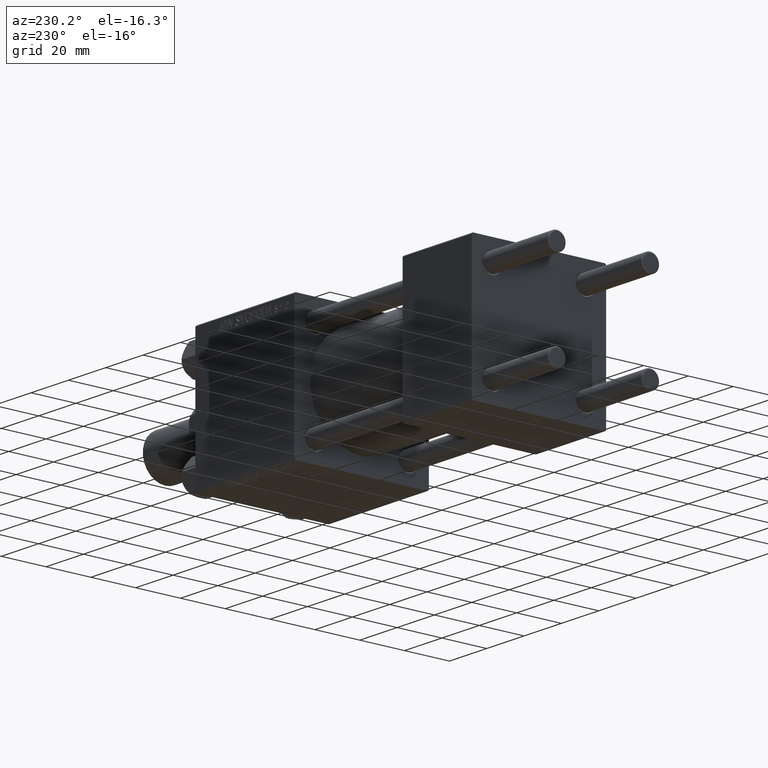
[diagram: clean part render]
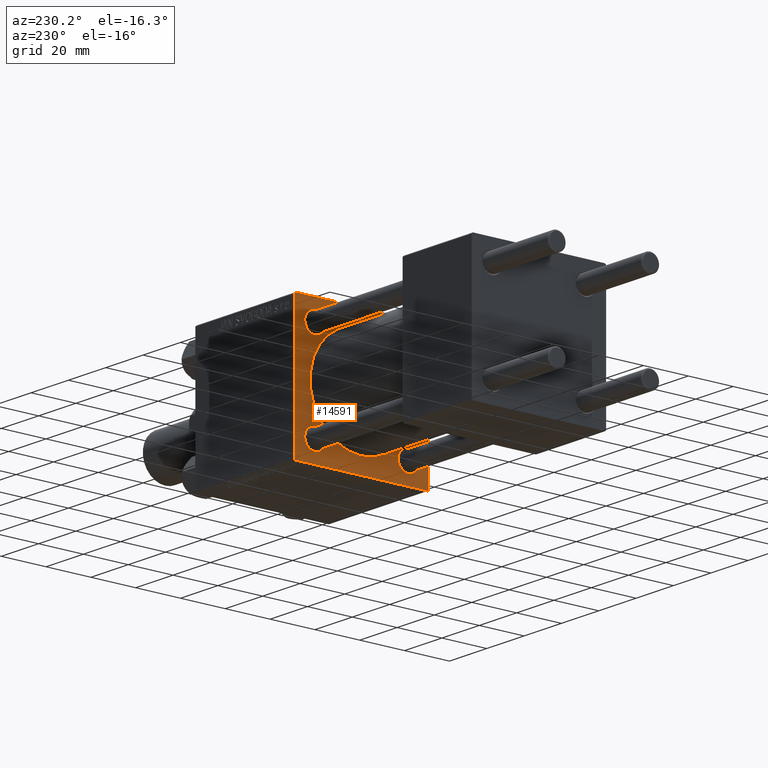
[diagram: same view with one face highlighted and labeled with its STEP entity id]
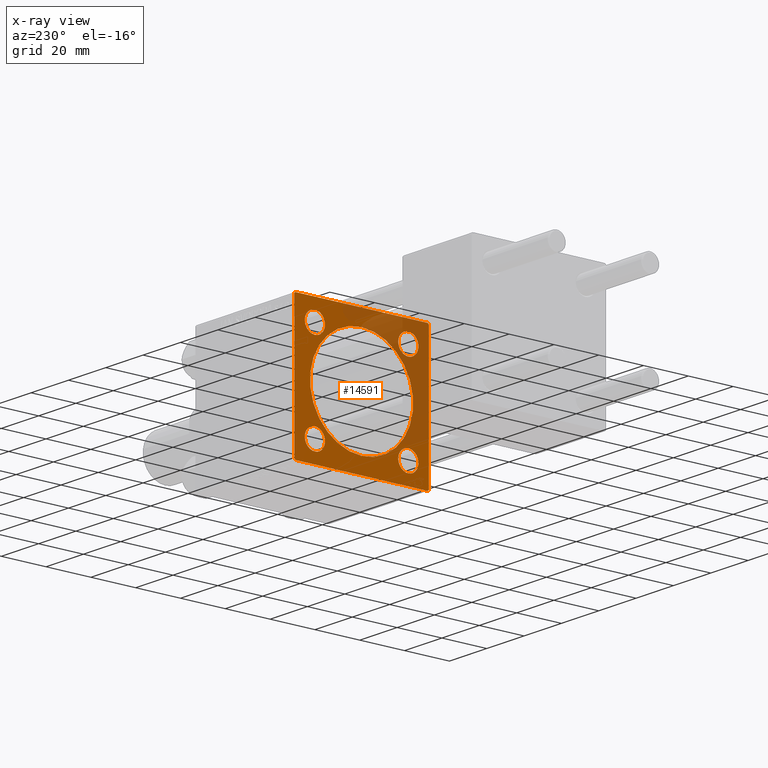
[diagram: x-ray of the same camera — body ghosted, the highlighted face saturated]
A machine part, auxiliary view. The second image highlights one B-rep face of the part: STEP entity #14591.
The next image is the same camera in x-ray: the body ghosted, the highlighted face saturated — about 34% of this face is hidden behind the body in this view.
In plain terms, the highlighted planar face has unit normal (-1, 0, 0).
Its self-contained STEP definition (entity closure, byte-faithful):
#133 = CARTESIAN_POINT ( 'NONE',  ( 95.00000000000000000, -20.84999999999999076, 20.85000000000000497 ) ) ;
#414 = DIRECTION ( 'NONE',  ( 0.000000000000000000, -1.000000000000000000, -1.156482317317871478E-16 ) ) ;
#1479 = VERTEX_POINT ( 'NONE', #14262 ) ;
#1724 = CIRCLE ( 'NONE', #30298, 4.500000000000003553 ) ;
#1769 = ORIENTED_EDGE ( 'NONE', *, *, #37141, .T. ) ;
#1861 = VERTEX_POINT ( 'NONE', #22562 ) ;
#1872 = CARTESIAN_POINT ( 'NONE',  ( 95.00000000000000000, -20.84999999999999076, 16.35000000000000142 ) ) ;
#2213 = ORIENTED_EDGE ( 'NONE', *, *, #44463, .T. ) ;
#3499 = DIRECTION ( 'NONE',  ( 0.000000000000000000, 0.000000000000000000, 1.000000000000000000 ) ) ;
#3792 = EDGE_LOOP ( 'NONE', ( #22305, #12843 ) ) ;
#4102 = ORIENTED_EDGE ( 'NONE', *, *, #6906, .T. ) ;
#4225 = ORIENTED_EDGE ( 'NONE', *, *, #27579, .T. ) ;
#4355 = VECTOR ( 'NONE', #34057, 1000.000000000000114 ) ;
#4947 = EDGE_CURVE ( 'NONE', #43282, #17350, #25901, .T. ) ;
#5177 = VERTEX_POINT ( 'NONE', #30387 ) ;
#5377 = CIRCLE ( 'NONE', #15989, 4.500000000000003553 ) ;
#5545 = VERTEX_POINT ( 'NONE', #44357 ) ;
#6450 = DIRECTION ( 'NONE',  ( 1.000000000000000000, 0.000000000000000000, 0.000000000000000000 ) ) ;
#6791 = DIRECTION ( 'NONE',  ( -1.000000000000000000, 0.000000000000000000, -0.000000000000000000 ) ) ;
#6906 = EDGE_CURVE ( 'NONE', #17350, #43282, #21770, .T. ) ;
#7037 = FACE_BOUND ( 'NONE', #34187, .T. ) ;
#7561 = EDGE_CURVE ( 'NONE', #38021, #39861, #34868, .T. ) ;
#7583 = VECTOR ( 'NONE', #38017, 1000.000000000000114 ) ;
#7894 = VECTOR ( 'NONE', #414, 1000.000000000000000 ) ;
#8184 = DIRECTION ( 'NONE',  ( 1.000000000000000000, 0.000000000000000000, 0.000000000000000000 ) ) ;
#8212 = AXIS2_PLACEMENT_3D ( 'NONE', #11758, #12764, #28379 ) ;
#8523 = DIRECTION ( 'NONE',  ( 0.000000000000000000, 0.000000000000000000, 1.000000000000000000 ) ) ;
#9545 = AXIS2_PLACEMENT_3D ( 'NONE', #133, #28251, #43103 ) ;
#9742 = CARTESIAN_POINT ( 'NONE',  ( 95.00000000000000000, -30.00000000000000000, -29.49999999999998579 ) ) ;
#10066 = CARTESIAN_POINT ( 'NONE',  ( 95.00000000000000000, 30.00000000000000000, 29.50000000000000000 ) ) ;
#10101 = AXIS2_PLACEMENT_3D ( 'NONE', #28950, #13858, #36884 ) ;
#10377 = FACE_BOUND ( 'NONE', #49153, .T. ) ;
#10940 = ORIENTED_EDGE ( 'NONE', *, *, #4947, .T. ) ;
#10997 = VERTEX_POINT ( 'NONE', #27969 ) ;
#11213 = EDGE_CURVE ( 'NONE', #35250, #18094, #30763, .T. ) ;
#11278 = DIRECTION ( 'NONE',  ( 0.000000000000000000, 0.000000000000000000, -1.000000000000000000 ) ) ;
#11323 = DIRECTION ( 'NONE',  ( -0.000000000000000000, -0.7071067811865474617, -0.7071067811865474617 ) ) ;
#11462 = CARTESIAN_POINT ( 'NONE',  ( 95.00000000000000000, 30.00000000000000000, -29.99999999999999289 ) ) ;
#11758 = CARTESIAN_POINT ( 'NONE',  ( 95.00000000000000000, 20.84999999999999787, 20.85000000000000142 ) ) ;
#12314 = CIRCLE ( 'NONE', #18827, 4.500000000000003553 ) ;
#12561 = EDGE_CURVE ( 'NONE', #5545, #47023, #47259, .T. ) ;
#12669 = CARTESIAN_POINT ( 'NONE',  ( 95.00000000000000000, 30.00000000000000000, 30.00000000000000000 ) ) ;
#12764 = DIRECTION ( 'NONE',  ( 1.000000000000000000, -0.000000000000000000, 0.000000000000000000 ) ) ;
#12793 = EDGE_CURVE ( 'NONE', #18094, #27571, #34745, .T. ) ;
#12843 = ORIENTED_EDGE ( 'NONE', *, *, #7561, .T. ) ;
#12866 = DIRECTION ( 'NONE',  ( 1.000000000000000000, -0.000000000000000000, 0.000000000000000000 ) ) ;
#12897 = ORIENTED_EDGE ( 'NONE', *, *, #44071, .F. ) ;
#13118 = CARTESIAN_POINT ( 'NONE',  ( 95.00000000000000000, 20.84999999999999787, 20.85000000000000142 ) ) ;
#13380 = DIRECTION ( 'NONE',  ( 0.000000000000000000, 0.000000000000000000, -1.000000000000000000 ) ) ;
#13765 = CARTESIAN_POINT ( 'NONE',  ( 95.00000000000000000, 30.00000000000000000, -29.49999999999997868 ) ) ;
#13811 = EDGE_CURVE ( 'NONE', #20222, #1861, #49742, .T. ) ;
#13858 = DIRECTION ( 'NONE',  ( 1.000000000000000000, -0.000000000000000000, 0.000000000000000000 ) ) ;
#14084 = ORIENTED_EDGE ( 'NONE', *, *, #31922, .T. ) ;
#14197 = CARTESIAN_POINT ( 'NONE',  ( 95.00000000000000000, -29.74999999999999645, 29.74999999999999645 ) ) ;
#14209 = FACE_BOUND ( 'NONE', #17165, .T. ) ;
#14262 = CARTESIAN_POINT ( 'NONE',  ( 95.00000000000000000, -30.00000000000000000, 29.49999999999999289 ) ) ;
#14421 = VECTOR ( 'NONE', #13380, 1000.000000000000000 ) ;
#14591 = ADVANCED_FACE ( 'NONE', ( #41333, #14209, #7037, #10377, #25982, #42075 ), #41590, .T. ) ;
#15102 = CARTESIAN_POINT ( 'NONE',  ( 95.00000000000000000, -30.00000000000000000, 29.99999999999999289 ) ) ;
#15549 = DIRECTION ( 'NONE',  ( 0.000000000000000000, -1.000000000000000000, -1.156482317317871478E-16 ) ) ;
#15584 = CARTESIAN_POINT ( 'NONE',  ( 95.00000000000000000, -20.84999999999999076, 20.85000000000000497 ) ) ;
#15989 = AXIS2_PLACEMENT_3D ( 'NONE', #22276, #37133, #37638 ) ;
#16945 = ORIENTED_EDGE ( 'NONE', *, *, #47531, .F. ) ;
#16954 = EDGE_CURVE ( 'NONE', #1861, #20222, #40897, .T. ) ;
#16993 = ORIENTED_EDGE ( 'NONE', *, *, #13811, .T. ) ;
#17053 = VECTOR ( 'NONE', #15549, 1000.000000000000000 ) ;
#17077 = CARTESIAN_POINT ( 'NONE',  ( 95.00000000000000000, 29.50000000000000000, -29.99999999999999289 ) ) ;
#17165 = EDGE_LOOP ( 'NONE', ( #26907, #16993 ) ) ;
#17350 = VERTEX_POINT ( 'NONE', #50253 ) ;
#17740 = CARTESIAN_POINT ( 'NONE',  ( 95.00000000000000000, 30.00000000000000000, 30.00000000000000000 ) ) ;
#18060 = CARTESIAN_POINT ( 'NONE',  ( 95.00000000000000000, 0.000000000000000000, 0.000000000000000000 ) ) ;
#18094 = VERTEX_POINT ( 'NONE', #17077 ) ;
#18208 = LINE ( 'NONE', #33812, #4355 ) ;
#18354 = VECTOR ( 'NONE', #41822, 1000.000000000000114 ) ;
#18473 = AXIS2_PLACEMENT_3D ( 'NONE', #21794, #6450, #22292 ) ;
#18810 = EDGE_CURVE ( 'NONE', #39861, #38021, #1724, .T. ) ;
#18827 = AXIS2_PLACEMENT_3D ( 'NONE', #43136, #42131, #3499 ) ;
#19352 = VERTEX_POINT ( 'NONE', #42763 ) ;
#19682 = VERTEX_POINT ( 'NONE', #46986 ) ;
#20222 = VERTEX_POINT ( 'NONE', #40790 ) ;
#20685 = CARTESIAN_POINT ( 'NONE',  ( 95.00000000000000000, 0.000000000000000000, 0.000000000000000000 ) ) ;
#20973 = AXIS2_PLACEMENT_3D ( 'NONE', #20685, #8184, #35287 ) ;
#21363 = CARTESIAN_POINT ( 'NONE',  ( 95.00000000000000000, -20.84999999999999076, -25.35000000000000853 ) ) ;
#21770 = CIRCLE ( 'NONE', #18473, 23.00000000000000000 ) ;
#21794 = CARTESIAN_POINT ( 'NONE',  ( 95.00000000000000000, 0.000000000000000000, 0.000000000000000000 ) ) ;
#22276 = CARTESIAN_POINT ( 'NONE',  ( 95.00000000000000000, -20.84999999999999076, -20.85000000000000497 ) ) ;
#22290 = EDGE_CURVE ( 'NONE', #19352, #19682, #12314, .T. ) ;
#22292 = DIRECTION ( 'NONE',  ( 0.000000000000000000, 0.000000000000000000, -1.000000000000000000 ) ) ;
#22305 = ORIENTED_EDGE ( 'NONE', *, *, #18810, .T. ) ;
#22562 = CARTESIAN_POINT ( 'NONE',  ( 95.00000000000000000, 20.84999999999999787, 25.35000000000000497 ) ) ;
#23657 = ORIENTED_EDGE ( 'NONE', *, *, #28151, .T. ) ;
#25157 = ORIENTED_EDGE ( 'NONE', *, *, #12561, .T. ) ;
#25901 = CIRCLE ( 'NONE', #20973, 23.00000000000000000 ) ;
#25982 = FACE_BOUND ( 'NONE', #35729, .T. ) ;
#26151 = VERTEX_POINT ( 'NONE', #10066 ) ;
#26907 = ORIENTED_EDGE ( 'NONE', *, *, #16954, .T. ) ;
#27571 = VERTEX_POINT ( 'NONE', #41352 ) ;
#27579 = EDGE_CURVE ( 'NONE', #27571, #30348, #49506, .T. ) ;
#27632 = LINE ( 'NONE', #15102, #40565 ) ;
#27850 = EDGE_LOOP ( 'NONE', ( #32518, #4225, #16945, #14084, #12897, #23657, #2213, #36210 ) ) ;
#27969 = CARTESIAN_POINT ( 'NONE',  ( 95.00000000000000000, -29.50000000000000000, 29.99999999999999289 ) ) ;
#28118 = CARTESIAN_POINT ( 'NONE',  ( 95.00000000000000000, -20.84999999999999076, -20.85000000000000497 ) ) ;
#28151 = EDGE_CURVE ( 'NONE', #5177, #26151, #18208, .T. ) ;
#28251 = DIRECTION ( 'NONE',  ( 1.000000000000000000, -0.000000000000000000, 0.000000000000000000 ) ) ;
#28379 = DIRECTION ( 'NONE',  ( 0.000000000000000000, 0.000000000000000000, 1.000000000000000000 ) ) ;
#28950 = CARTESIAN_POINT ( 'NONE',  ( 95.00000000000000000, 20.84999999999999787, -20.85000000000000142 ) ) ;
#29588 = CARTESIAN_POINT ( 'NONE',  ( 95.00000000000000000, -29.74999999999999645, -29.74999999999999645 ) ) ;
#30298 = AXIS2_PLACEMENT_3D ( 'NONE', #15584, #47031, #46281 ) ;
#30348 = VERTEX_POINT ( 'NONE', #9742 ) ;
#30387 = CARTESIAN_POINT ( 'NONE',  ( 95.00000000000000000, 29.50000000000000000, 30.00000000000000000 ) ) ;
#30763 = LINE ( 'NONE', #46850, #49669 ) ;
#31922 = EDGE_CURVE ( 'NONE', #1479, #10997, #33399, .T. ) ;
#32379 = LINE ( 'NONE', #12669, #7894 ) ;
#32449 = ORIENTED_EDGE ( 'NONE', *, *, #22290, .T. ) ;
#32518 = ORIENTED_EDGE ( 'NONE', *, *, #12793, .T. ) ;
#33399 = LINE ( 'NONE', #14197, #18354 ) ;
#33812 = CARTESIAN_POINT ( 'NONE',  ( 95.00000000000000000, 29.74999999999999645, 29.74999999999999645 ) ) ;
#34057 = DIRECTION ( 'NONE',  ( 0.000000000000000000, 0.7071067811865474617, -0.7071067811865474617 ) ) ;
#34187 = EDGE_LOOP ( 'NONE', ( #1769, #32449 ) ) ;
#34403 = DIRECTION ( 'NONE',  ( -0.000000000000000000, 0.000000000000000000, 1.000000000000000000 ) ) ;
#34745 = LINE ( 'NONE', #11462, #17053 ) ;
#34868 = CIRCLE ( 'NONE', #9545, 4.500000000000003553 ) ;
#35250 = VERTEX_POINT ( 'NONE', #13765 ) ;
#35287 = DIRECTION ( 'NONE',  ( 0.000000000000000000, 0.000000000000000000, -1.000000000000000000 ) ) ;
#35729 = EDGE_LOOP ( 'NONE', ( #4102, #10940 ) ) ;
#35813 = AXIS2_PLACEMENT_3D ( 'NONE', #28118, #40411, #48069 ) ;
#36210 = ORIENTED_EDGE ( 'NONE', *, *, #11213, .T. ) ;
#36707 = AXIS2_PLACEMENT_3D ( 'NONE', #13118, #12866, #8523 ) ;
#36884 = DIRECTION ( 'NONE',  ( 0.000000000000000000, 0.000000000000000000, 1.000000000000000000 ) ) ;
#37133 = DIRECTION ( 'NONE',  ( 1.000000000000000000, -0.000000000000000000, 0.000000000000000000 ) ) ;
#37141 = EDGE_CURVE ( 'NONE', #19682, #19352, #45213, .T. ) ;
#37638 = DIRECTION ( 'NONE',  ( 0.000000000000000000, 0.000000000000000000, 1.000000000000000000 ) ) ;
#38017 = DIRECTION ( 'NONE',  ( 0.000000000000000000, -0.7071067811865474617, 0.7071067811865474617 ) ) ;
#38021 = VERTEX_POINT ( 'NONE', #1872 ) ;
#38907 = ORIENTED_EDGE ( 'NONE', *, *, #42608, .T. ) ;
#39173 = AXIS2_PLACEMENT_3D ( 'NONE', #18060, #6791, #34403 ) ;
#39450 = CARTESIAN_POINT ( 'NONE',  ( 95.00000000000000000, 2.816687638038911957E-15, -23.00000000000000000 ) ) ;
#39861 = VERTEX_POINT ( 'NONE', #42318 ) ;
#40411 = DIRECTION ( 'NONE',  ( 1.000000000000000000, -0.000000000000000000, 0.000000000000000000 ) ) ;
#40565 = VECTOR ( 'NONE', #11278, 1000.000000000000000 ) ;
#40790 = CARTESIAN_POINT ( 'NONE',  ( 95.00000000000000000, 20.84999999999999787, 16.34999999999999787 ) ) ;
#40897 = CIRCLE ( 'NONE', #8212, 4.500000000000003553 ) ;
#41333 = FACE_BOUND ( 'NONE', #3792, .T. ) ;
#41352 = CARTESIAN_POINT ( 'NONE',  ( 95.00000000000000000, -29.50000000000000000, -30.00000000000000000 ) ) ;
#41590 = PLANE ( 'NONE',  #39173 ) ;
#41822 = DIRECTION ( 'NONE',  ( -0.000000000000000000, 0.7071067811865474617, 0.7071067811865474617 ) ) ;
#42075 = FACE_OUTER_BOUND ( 'NONE', #27850, .T. ) ;
#42131 = DIRECTION ( 'NONE',  ( 1.000000000000000000, -0.000000000000000000, 0.000000000000000000 ) ) ;
#42318 = CARTESIAN_POINT ( 'NONE',  ( 95.00000000000000000, -20.84999999999999076, 25.35000000000000853 ) ) ;
#42608 = EDGE_CURVE ( 'NONE', #47023, #5545, #5377, .T. ) ;
#42763 = CARTESIAN_POINT ( 'NONE',  ( 95.00000000000000000, 20.84999999999999787, -25.35000000000000497 ) ) ;
#43103 = DIRECTION ( 'NONE',  ( 0.000000000000000000, 0.000000000000000000, 1.000000000000000000 ) ) ;
#43136 = CARTESIAN_POINT ( 'NONE',  ( 95.00000000000000000, 20.84999999999999787, -20.85000000000000142 ) ) ;
#43282 = VERTEX_POINT ( 'NONE', #39450 ) ;
#44071 = EDGE_CURVE ( 'NONE', #5177, #10997, #32379, .T. ) ;
#44357 = CARTESIAN_POINT ( 'NONE',  ( 95.00000000000000000, -20.84999999999999076, -16.35000000000000142 ) ) ;
#44463 = EDGE_CURVE ( 'NONE', #26151, #35250, #48169, .T. ) ;
#45213 = CIRCLE ( 'NONE', #10101, 4.500000000000003553 ) ;
#46281 = DIRECTION ( 'NONE',  ( 0.000000000000000000, 0.000000000000000000, 1.000000000000000000 ) ) ;
#46850 = CARTESIAN_POINT ( 'NONE',  ( 95.00000000000000000, 29.74999999999999645, -29.74999999999999645 ) ) ;
#46986 = CARTESIAN_POINT ( 'NONE',  ( 95.00000000000000000, 20.84999999999999787, -16.34999999999999787 ) ) ;
#47023 = VERTEX_POINT ( 'NONE', #21363 ) ;
#47031 = DIRECTION ( 'NONE',  ( 1.000000000000000000, -0.000000000000000000, 0.000000000000000000 ) ) ;
#47259 = CIRCLE ( 'NONE', #35813, 4.500000000000003553 ) ;
#47531 = EDGE_CURVE ( 'NONE', #1479, #30348, #27632, .T. ) ;
#48069 = DIRECTION ( 'NONE',  ( 0.000000000000000000, 0.000000000000000000, 1.000000000000000000 ) ) ;
#48169 = LINE ( 'NONE', #17740, #14421 ) ;
#49153 = EDGE_LOOP ( 'NONE', ( #25157, #38907 ) ) ;
#49506 = LINE ( 'NONE', #29588, #7583 ) ;
#49669 = VECTOR ( 'NONE', #11323, 1000.000000000000114 ) ;
#49742 = CIRCLE ( 'NONE', #36707, 4.500000000000003553 ) ;
#50253 = CARTESIAN_POINT ( 'NONE',  ( 95.00000000000000000, 0.000000000000000000, 23.00000000000000000 ) ) ;